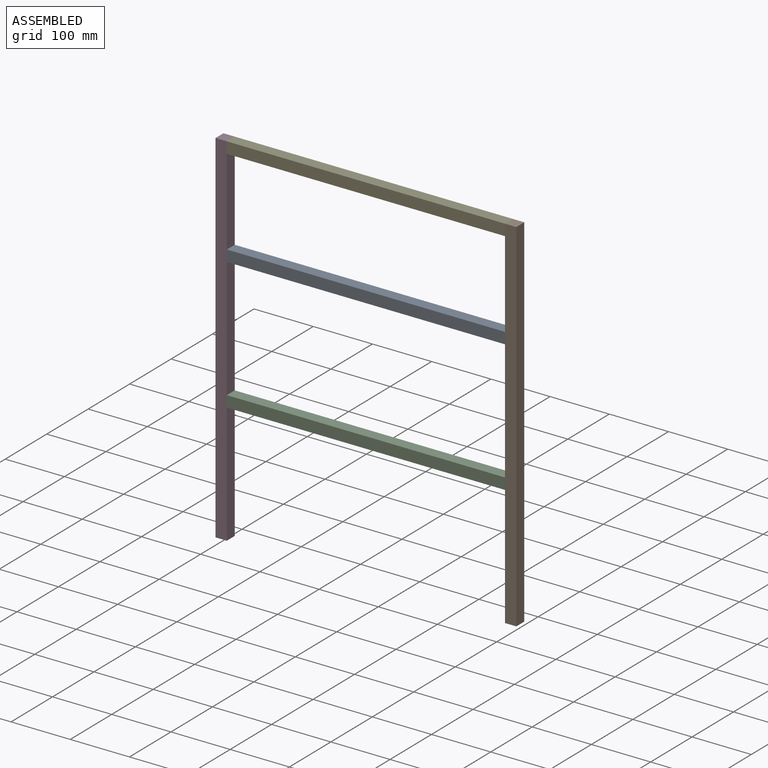
[diagram: assembled view]
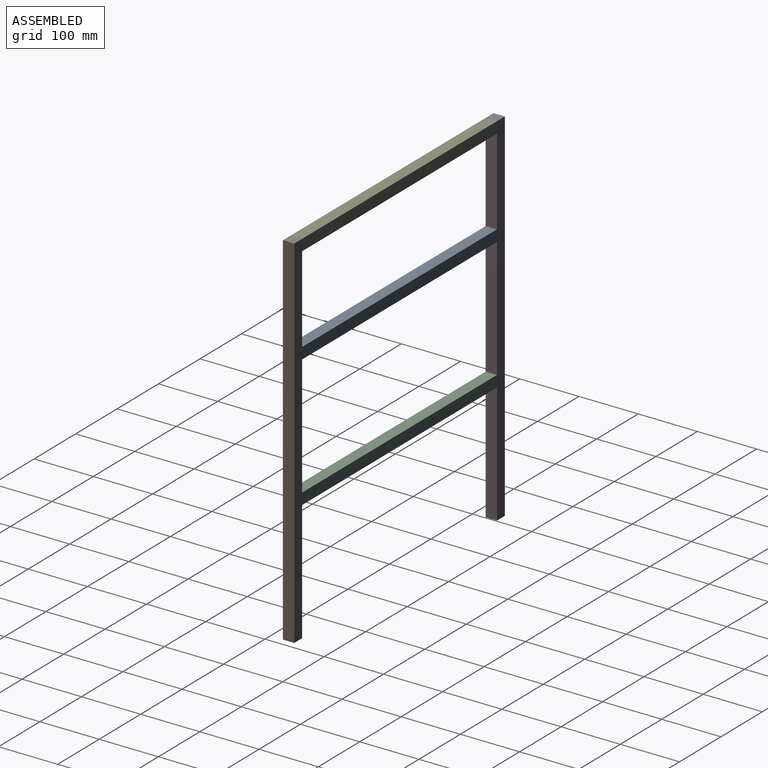
[diagram: assembled view, second angle]
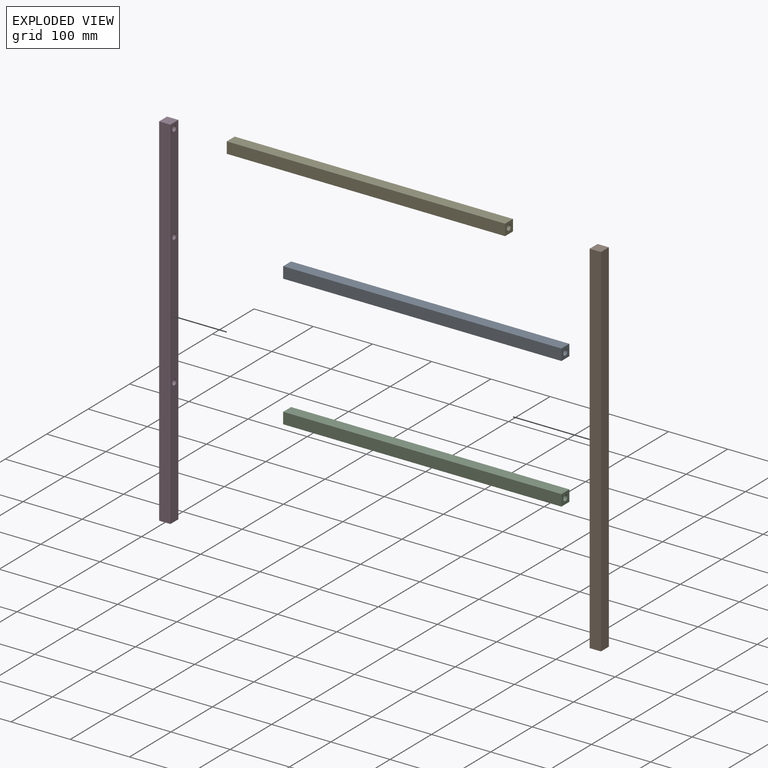
[diagram: exploded view]
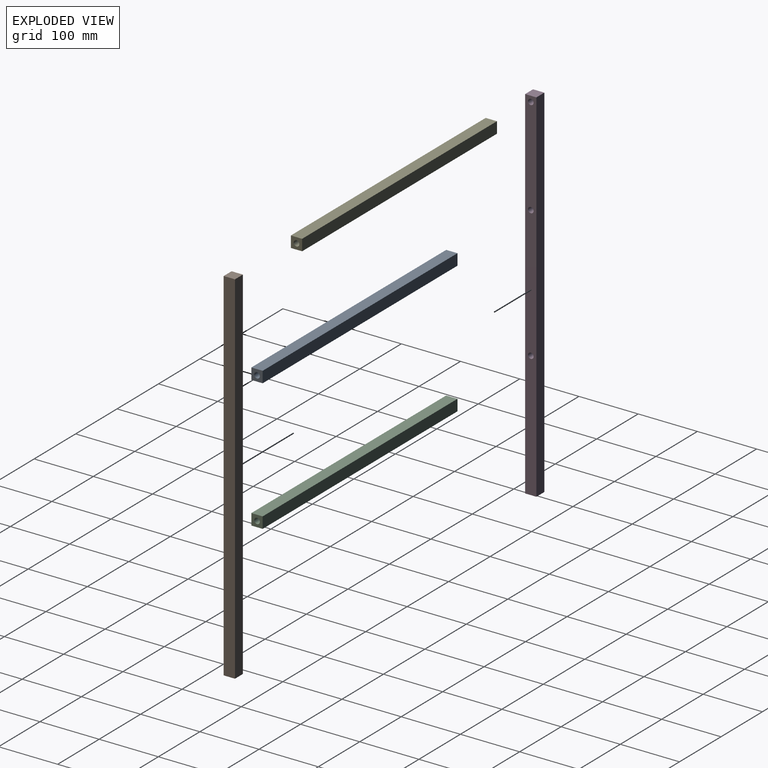
[diagram: exploded view, second angle]
ASSEMBLY  parts=5 mates=4
PART A: 10 faces, bbox 469.9x19.1x19.1 mm
  f0: plane 469.9x19.05mm, normal (0,-1,0), area 8951.6mm2, adj f1,f3,f4,f5
  f1: plane 469.9x19.05mm, normal (0,0,-1), area 8951.6mm2, adj f0,f2,f4,f5
  f2: plane 469.9x19.05mm, normal (0,1,0), area 8951.6mm2, adj f1,f3,f4,f5
  f3: plane 469.9x19.05mm, normal (0,0,1), area 8951.6mm2, adj f0,f2,f4,f5
  f4: plane 19.05x19.05mm, normal (1,0,0), area 291.6mm2, adj f0,f1,f2,f3,f6
  f5: plane 19.05x19.05mm, normal (-1,0,0), area 291.6mm2, adj f0,f1,f2,f3,f8
  f6: cylinder r=4.76mm len=12.7mm, axis (1,0,0), area 380mm2, adj f4,f7
  f7: plane 9.53x9.53mm, normal (1,0,0), area 71.3mm2, adj f6
  f8: cylinder r=4.76mm len=12.7mm, axis (-1,0,0), area 380mm2, adj f5,f9
  f9: plane 9.53x9.53mm, normal (-1,0,0), area 71.3mm2, adj f8
PART B: 14 faces, bbox 19.1x19.1x609.6 mm
  f0: plane 609.6x19.05mm, normal (-1,0,0), area 11612.9mm2, adj f1,f3,f4,f5
  f1: plane 609.6x19.05mm, normal (0,-1,0), area 11612.9mm2, adj f0,f2,f4,f5
  f2: plane 609.6x19.05mm, normal (1,0,0), area 11399.1mm2, adj f1,f3,f4,f5,f6,f8,f10
  f3: plane 609.6x19.05mm, normal (0,1,0), area 11612.9mm2, adj f0,f2,f4,f5
  f4: plane 19.05x19.05mm, normal (0,0,1), area 362.9mm2, adj f0,f1,f2,f3
  f5: plane 19.05x19.05mm, normal (0,0,-1), area 291.6mm2, adj f0,f1,f2,f3,f12
  f6: cylinder r=4.76mm len=12.7mm, axis (1,0,0), area 380mm2, adj f2,f7
  f7: plane 9.53x9.53mm, normal (1,0,0), area 71.3mm2, adj f6
  f8: cylinder r=4.76mm len=12.7mm, axis (1,0,0), area 380mm2, adj f2,f9
  f9: plane 9.53x9.53mm, normal (1,0,0), area 71.3mm2, adj f8
  f10: cylinder r=4.76mm len=12.7mm, axis (1,0,0), area 380mm2, adj f2,f11
  f11: plane 9.53x9.53mm, normal (1,0,0), area 71.3mm2, adj f10
  f12: cylinder r=4.76mm len=12.7mm, axis (0,0,-1), area 380mm2, adj f5,f13
  f13: plane 9.53x9.53mm, normal (0,0,-1), area 71.3mm2, adj f12
PART C: same geometry as A
PART D: same geometry as B
PART E: same geometry as A
PLACE A t=(-80.92,235.98,-70.46)mm
PLACE B rot(axis=(0,0,1),180deg) t=(408.03,255.03,-495.91)mm
PLACE C t=(-80.92,235.98,-292.71)mm
PLACE D t=(-99.97,235.98,-495.91)mm
PLACE E t=(-80.92,235.98,94.64)mm
MATE fastened A.f6 <-> D.f6  axis (-1,0,0) through (-80.92,245.5,-60.93)mm
MATE fastened B.f10 <-> E.f6  axis (-1,0,0) through (388.98,245.5,104.17)mm
MATE fastened D.f10 <-> E.f6  axis (1,0,0) through (-80.92,245.5,104.17)mm
MATE fastened C.f6 <-> D.f8  axis (-1,0,0) through (-80.92,245.5,-283.18)mm
